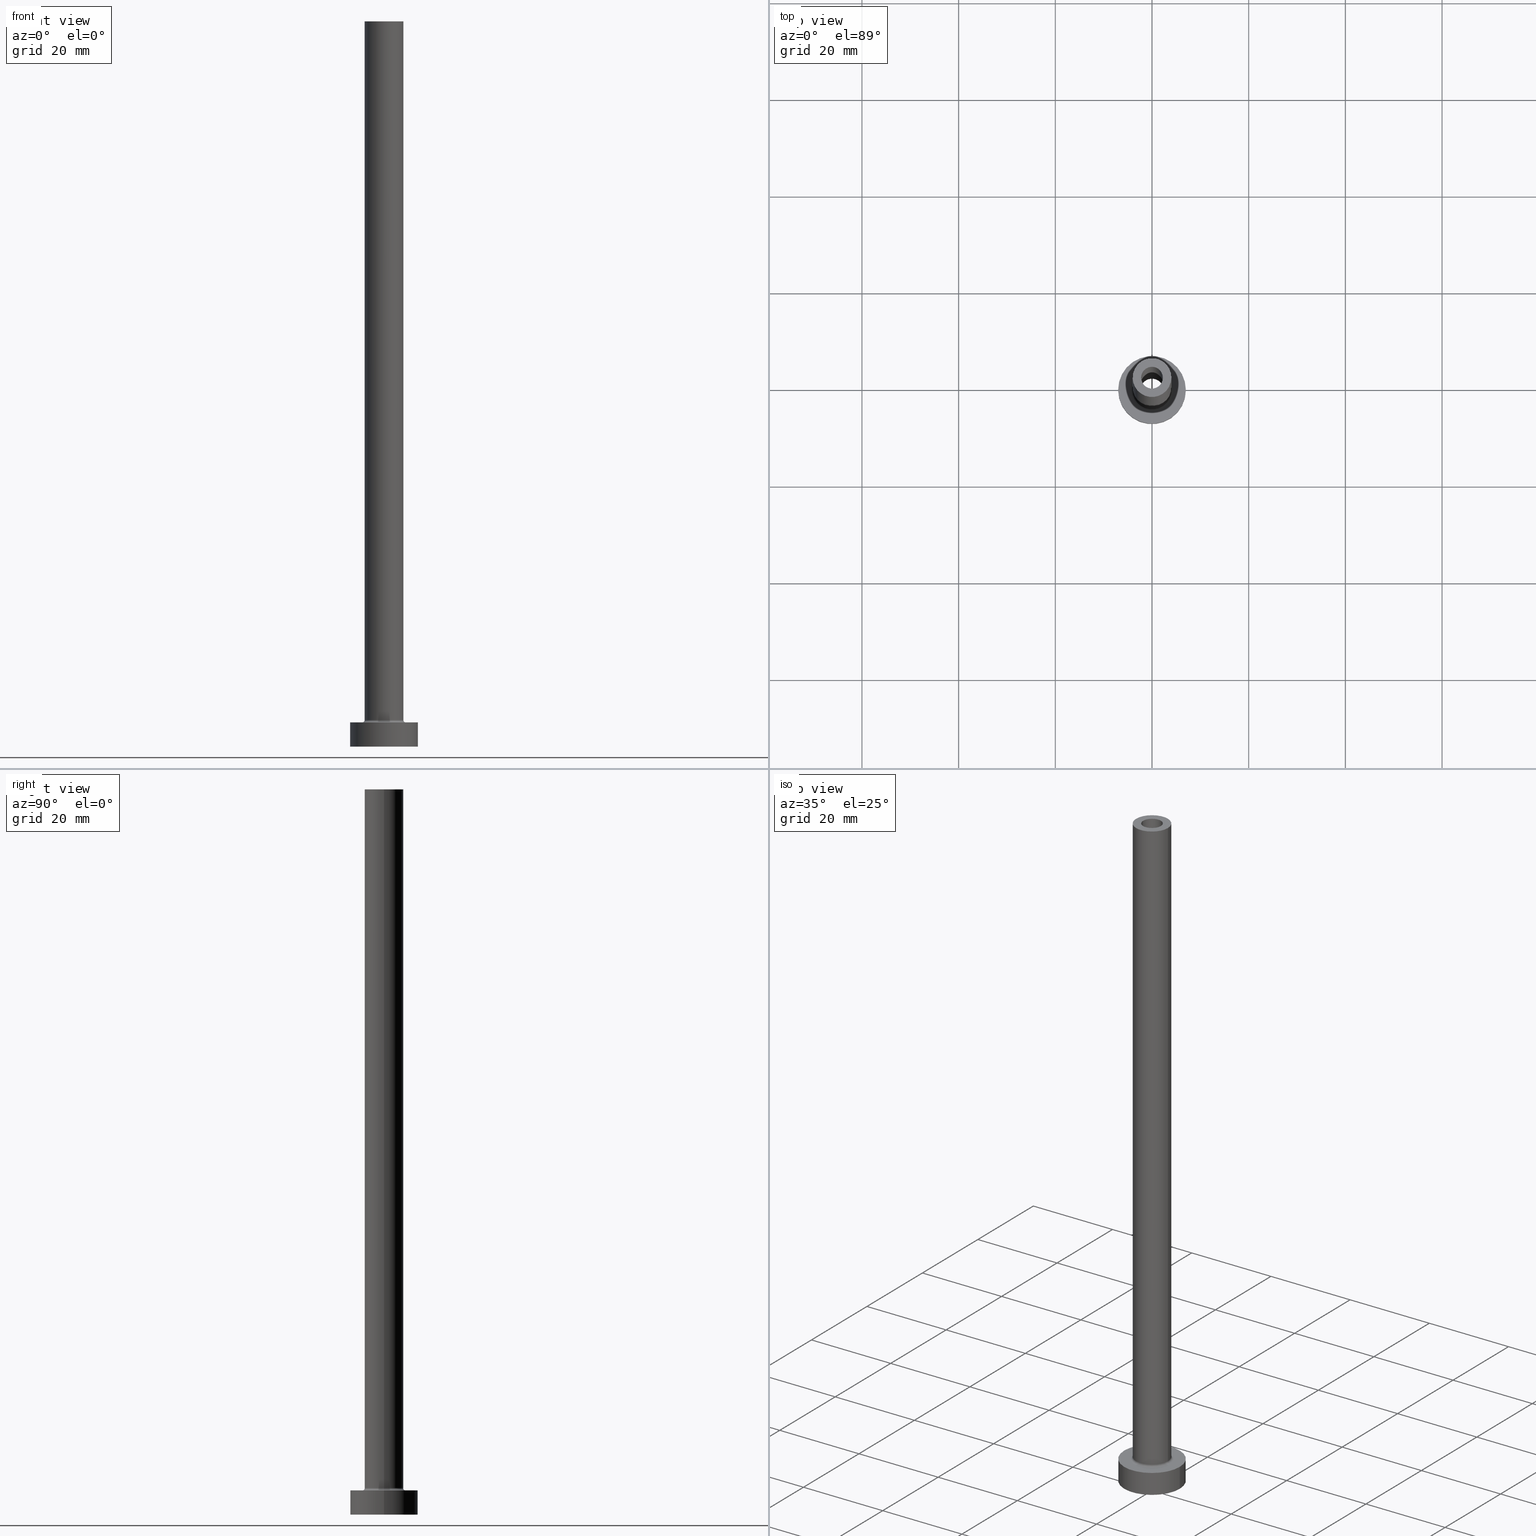
[diagram: canonical four-view strip — front | top / right | iso, engineering-drawing reading convention]
A machine part, canonical four-view strip (front | top / right | iso — engineering-drawing reading convention). The complete STEP part file that produces these views, byte-faithful:
ISO-10303-21;
HEADER;
FILE_DESCRIPTION (( 'STEP AP203' ),
    '1' );
FILE_NAME ('fded.STEP',
    '2023-02-13T11:05:26',
    ( '' ),
    ( '' ),
    'SwSTEP 2.0',
    'SolidWorks 2019',
    '' );
FILE_SCHEMA (( 'CONFIG_CONTROL_DESIGN' ));
ENDSEC;

DATA;
#1 = ORIENTED_EDGE ( 'NONE', *, *, #280, .F. ) ;
#2 = CARTESIAN_POINT ( 'NONE',  ( 0.000000000000000000, 0.000000000000000000, 5.500000000000005329 ) ) ;
#3 = CIRCLE ( 'NONE', #285, 4.500000000000000888 ) ;
#4 = PERSON_AND_ORGANIZATION ( #320, #323 ) ;
#5 = LOCAL_TIME ( 12, 5, 26.00000000000000000, #43 ) ;
#6 = CYLINDRICAL_SURFACE ( 'NONE', #351, 4.000000000000000000 ) ;
#7 = APPROVAL_STATUS ( 'not_yet_approved' ) ;
#8 = CYLINDRICAL_SURFACE ( 'NONE', #153, 2.399999999999999911 ) ;
#9 = ORIENTED_EDGE ( 'NONE', *, *, #194, .T. ) ;
#10 = ORIENTED_EDGE ( 'NONE', *, *, #186, .T. ) ;
#11 = CALENDAR_DATE ( 2023, 13, 2 ) ;
#12 = DIRECTION ( 'NONE',  ( 1.000000000000000000, 0.000000000000000000, 0.000000000000000000 ) ) ;
#13 = ORIENTED_EDGE ( 'NONE', *, *, #119, .F. ) ;
#14 = CC_DESIGN_DATE_AND_TIME_ASSIGNMENT ( #288, #321, ( #76 ) ) ;
#15 = DIRECTION ( 'NONE',  ( 1.000000000000000000, 0.000000000000000000, 0.000000000000000000 ) ) ;
#16 = EDGE_LOOP ( 'NONE', ( #123, #187, #389, #257 ) ) ;
#17 = ORIENTED_EDGE ( 'NONE', *, *, #107, .T. ) ;
#18 = EDGE_LOOP ( 'NONE', ( #176, #264, #405, #184 ) ) ;
#19 = AXIS2_PLACEMENT_3D ( 'NONE', #446, #372, #199 ) ;
#20 = DIRECTION ( 'NONE',  ( 0.000000000000000000, 0.000000000000000000, -1.000000000000000000 ) ) ;
#21 = ADVANCED_FACE ( 'NONE', ( #270 ), #262, .F. ) ;
#22 = CARTESIAN_POINT ( 'NONE',  ( -2.399999999999999911, 0.000000000000000000, 111.7882250993908571 ) ) ;
#23 = LINE ( 'NONE', #22, #117 ) ;
#24 = CARTESIAN_POINT ( 'NONE',  ( 0.000000000000000000, 0.000000000000000000, 0.000000000000000000 ) ) ;
#25 = CIRCLE ( 'NONE', #182, 4.500000000000000888 ) ;
#26 = EDGE_CURVE ( 'NONE', #315, #65, #399, .T. ) ;
#27 = FACE_OUTER_BOUND ( 'NONE', #155, .T. ) ;
#28 = AXIS2_PLACEMENT_3D ( 'NONE', #267, #412, #391 ) ;
#29 = APPROVAL_ROLE ( '' ) ;
#30 = DIRECTION ( 'NONE',  ( -0.000000000000000000, -0.000000000000000000, -1.000000000000000000 ) ) ;
#31 = CIRCLE ( 'NONE', #60, 2.250000000000000000 ) ;
#32 = DIRECTION ( 'NONE',  ( 1.000000000000000000, 0.000000000000000000, 0.000000000000000000 ) ) ;
#33 = CARTESIAN_POINT ( 'NONE',  ( 0.000000000000000000, 0.000000000000000000, 150.0000000000000000 ) ) ;
#34 = ORIENTED_EDGE ( 'NONE', *, *, #236, .T. ) ;
#35 = ADVANCED_FACE ( 'NONE', ( #344 ), #415, .T. ) ;
#36 = CARTESIAN_POINT ( 'NONE',  ( 0.000000000000000000, 0.000000000000000000, 5.000000000000000000 ) ) ;
#37 = CIRCLE ( 'NONE', #293, 0.5000000000000004441 ) ;
#38 = PERSON_AND_ORGANIZATION ( #320, #323 ) ;
#39 = EDGE_CURVE ( 'NONE', #218, #50, #449, .T. ) ;
#40 = DIRECTION ( 'NONE',  ( 0.000000000000000000, 0.000000000000000000, 1.000000000000000000 ) ) ;
#41 = VERTEX_POINT ( 'NONE', #301 ) ;
#42 = AXIS2_PLACEMENT_3D ( 'NONE', #56, #273, #307 ) ;
#43 = COORDINATED_UNIVERSAL_TIME_OFFSET ( 1, 0, .AHEAD. ) ;
#44 = VERTEX_POINT ( 'NONE', #339 ) ;
#45 = APPROVAL_STATUS ( 'not_yet_approved' ) ;
#46 = EDGE_LOOP ( 'NONE', ( #385, #216, #228, #82 ) ) ;
#47 = CC_DESIGN_DATE_AND_TIME_ASSIGNMENT ( #437, #251, ( #260 ) ) ;
#48 = APPROVAL_DATE_TIME ( #395, #429 ) ;
#49 = AXIS2_PLACEMENT_3D ( 'NONE', #128, #229, #370 ) ;
#50 = VERTEX_POINT ( 'NONE', #447 ) ;
#51 = ADVANCED_BREP_SHAPE_REPRESENTATION ( 'fded', ( #189, #68 ), #313 ) ;
#52 = AXIS2_PLACEMENT_3D ( 'NONE', #201, #160, #100 ) ;
#53 = DIRECTION ( 'NONE',  ( -0.000000000000000000, -0.000000000000000000, -1.000000000000000000 ) ) ;
#54 = ORIENTED_EDGE ( 'NONE', *, *, #374, .F. ) ;
#55 = CARTESIAN_POINT ( 'NONE',  ( -4.500000000000000888, 5.510910596163088569E-16, 5.000000000000002665 ) ) ;
#56 = CARTESIAN_POINT ( 'NONE',  ( 0.000000000000000000, 0.000000000000000000, 105.0000000000000000 ) ) ;
#57 = CLOSED_SHELL ( 'NONE', ( #126, #322, #141, #35, #74, #424, #89, #294, #207, #59, #21, #276, #369, #159 ) ) ;
#58 = DIRECTION ( 'NONE',  ( 1.000000000000000000, 0.000000000000000000, 0.000000000000000000 ) ) ;
#59 = ADVANCED_FACE ( 'NONE', ( #454, #419 ), #310, .T. ) ;
#60 = AXIS2_PLACEMENT_3D ( 'NONE', #337, #317, #32 ) ;
#61 = VERTEX_POINT ( 'NONE', #144 ) ;
#62 = DIRECTION ( 'NONE',  ( 0.000000000000000000, 0.000000000000000000, 1.000000000000000000 ) ) ;
#63 = VERTEX_POINT ( 'NONE', #109 ) ;
#64 = CYLINDRICAL_SURFACE ( 'NONE', #231, 2.399999999999999911 ) ;
#65 = VERTEX_POINT ( 'NONE', #79 ) ;
#66 = CARTESIAN_POINT ( 'NONE',  ( -2.250000000000000000, 0.000000000000000000, 150.0000000000000000 ) ) ;
#67 = DIRECTION ( 'NONE',  ( 1.000000000000000000, 0.000000000000000000, 0.000000000000000000 ) ) ;
#68 = AXIS2_PLACEMENT_3D ( 'NONE', #102, #235, #377 ) ;
#69 = APPLICATION_PROTOCOL_DEFINITION ( 'international standard', 'config_control_design', 1994, #210 ) ;
#70 = FACE_OUTER_BOUND ( 'NONE', #46, .T. ) ;
#71 = AXIS2_PLACEMENT_3D ( 'NONE', #106, #73, #349 ) ;
#72 = DATE_AND_TIME ( #105, #124 ) ;
#73 = DIRECTION ( 'NONE',  ( 0.000000000000000000, 0.000000000000000000, 1.000000000000000000 ) ) ;
#74 = ADVANCED_FACE ( 'NONE', ( #27 ), #347, .T. ) ;
#75 = ORIENTED_EDGE ( 'NONE', *, *, #452, .F. ) ;
#76 = SECURITY_CLASSIFICATION ( '', '', #442 ) ;
#77 = DIRECTION ( 'NONE',  ( 1.000000000000000000, 0.000000000000000000, 0.000000000000000000 ) ) ;
#78 = COORDINATED_UNIVERSAL_TIME_OFFSET ( 1, 0, .AHEAD. ) ;
#79 = CARTESIAN_POINT ( 'NONE',  ( -2.399999999999999911, 0.000000000000000000, 0.000000000000000000 ) ) ;
#80 = CC_DESIGN_PERSON_AND_ORGANIZATION_ASSIGNMENT ( #4, #247, ( #396 ) ) ;
#81 = COORDINATED_UNIVERSAL_TIME_OFFSET ( 1, 0, .AHEAD. ) ;
#82 = ORIENTED_EDGE ( 'NONE', *, *, #286, .F. ) ;
#83 = AXIS2_PLACEMENT_3D ( 'NONE', #422, #215, #461 ) ;
#84 = DATE_AND_TIME ( #150, #5 ) ;
#85 = CC_DESIGN_APPROVAL ( #309, ( #76 ) ) ;
#86 = CARTESIAN_POINT ( 'NONE',  ( 0.000000000000000000, 0.000000000000000000, 150.0000000000000000 ) ) ;
#87 = EDGE_LOOP ( 'NONE', ( #225, #224 ) ) ;
#88 = DIRECTION ( 'NONE',  ( 0.000000000000000000, 0.000000000000000000, 1.000000000000000000 ) ) ;
#89 = ADVANCED_FACE ( 'NONE', ( #423, #284 ), #174, .T. ) ;
#90 = ORIENTED_EDGE ( 'NONE', *, *, #107, .F. ) ;
#91 = VERTEX_POINT ( 'NONE', #103 ) ;
#92 = VECTOR ( 'NONE', #393, 1000.000000000000000 ) ;
#93 = DIRECTION ( 'NONE',  ( 1.000000000000000000, 0.000000000000000000, 0.000000000000000000 ) ) ;
#94 = ORIENTED_EDGE ( 'NONE', *, *, #221, .F. ) ;
#95 = AXIS2_PLACEMENT_3D ( 'NONE', #24, #166, #67 ) ;
#96 = CC_DESIGN_PERSON_AND_ORGANIZATION_ASSIGNMENT ( #277, #379, ( #237 ) ) ;
#97 = CARTESIAN_POINT ( 'NONE',  ( 2.399999999999999911, 2.939152317953647106E-16, 0.000000000000000000 ) ) ;
#98 = VECTOR ( 'NONE', #53, 1000.000000000000000 ) ;
#99 = UNCERTAINTY_MEASURE_WITH_UNIT (LENGTH_MEASURE( 1.000000000000000082E-05 ), #383, 'distance_accuracy_value', 'NONE');
#100 = DIRECTION ( 'NONE',  ( -1.000000000000000000, 0.000000000000000000, 0.000000000000000000 ) ) ;
#101 = CC_DESIGN_PERSON_AND_ORGANIZATION_ASSIGNMENT ( #258, #390, ( #76 ) ) ;
#102 = CARTESIAN_POINT ( 'NONE',  ( 0.000000000000000000, 0.000000000000000000, 0.000000000000000000 ) ) ;
#103 = CARTESIAN_POINT ( 'NONE',  ( -4.000000000000000000, 0.000000000000000000, 5.500000000000005329 ) ) ;
#104 = VECTOR ( 'NONE', #356, 1000.000000000000000 ) ;
#105 = CALENDAR_DATE ( 2023, 13, 2 ) ;
#106 = CARTESIAN_POINT ( 'NONE',  ( 0.000000000000000000, 0.000000000000000000, 5.500000000000005329 ) ) ;
#107 = EDGE_CURVE ( 'NONE', #196, #41, #171, .T. ) ;
#108 = CARTESIAN_POINT ( 'NONE',  ( 4.000000000000000000, 4.898587196589412829E-16, 5.500000000000005329 ) ) ;
#109 = CARTESIAN_POINT ( 'NONE',  ( 4.500000000000000888, 0.000000000000000000, 5.000000000000002665 ) ) ;
#110 = CARTESIAN_POINT ( 'NONE',  ( 0.000000000000000000, 0.000000000000000000, 5.000000000000000000 ) ) ;
#111 = CYLINDRICAL_SURFACE ( 'NONE', #411, 2.250000000000000000 ) ;
#112 = ORIENTED_EDGE ( 'NONE', *, *, #363, .F. ) ;
#113 = EDGE_CURVE ( 'NONE', #196, #328, #167, .T. ) ;
#114 = CARTESIAN_POINT ( 'NONE',  ( 2.399999999999999911, 2.939152317953647106E-16, 105.0000000000000000 ) ) ;
#115 = EDGE_LOOP ( 'NONE', ( #376, #9, #441, #94 ) ) ;
#116 = ORIENTED_EDGE ( 'NONE', *, *, #194, .F. ) ;
#117 = VECTOR ( 'NONE', #20, 1000.000000000000000 ) ;
#118 = ORIENTED_EDGE ( 'NONE', *, *, #388, .T. ) ;
#119 = EDGE_CURVE ( 'NONE', #445, #91, #401, .T. ) ;
#120 = DIRECTION ( 'NONE',  ( 1.000000000000000000, 0.000000000000000000, 0.000000000000000000 ) ) ;
#121 = ORIENTED_EDGE ( 'NONE', *, *, #460, .F. ) ;
#122 = DIRECTION ( 'NONE',  ( 1.000000000000000000, 0.000000000000000000, 0.000000000000000000 ) ) ;
#123 = ORIENTED_EDGE ( 'NONE', *, *, #381, .T. ) ;
#124 = LOCAL_TIME ( 12, 5, 26.00000000000000000, #170 ) ;
#125 = CARTESIAN_POINT ( 'NONE',  ( 0.000000000000000000, 0.000000000000000000, 5.500000000000005329 ) ) ;
#126 = ADVANCED_FACE ( 'NONE', ( #139 ), #111, .F. ) ;
#127 = CIRCLE ( 'NONE', #318, 2.250000000000000000 ) ;
#128 = CARTESIAN_POINT ( 'NONE',  ( 0.000000000000000000, 0.000000000000000000, 0.000000000000000000 ) ) ;
#129 = CARTESIAN_POINT ( 'NONE',  ( -2.399999999999999911, 0.000000000000000000, 105.0000000000000000 ) ) ;
#130 = EDGE_LOOP ( 'NONE', ( #112, #297, #421, #368 ) ) ;
#131 = CC_DESIGN_PERSON_AND_ORGANIZATION_ASSIGNMENT ( #348, #173, ( #260 ) ) ;
#132 = DIRECTION ( 'NONE',  ( 1.000000000000000000, 0.000000000000000000, 0.000000000000000000 ) ) ;
#133 = AXIS2_PLACEMENT_3D ( 'NONE', #456, #197, #132 ) ;
#134 = ORIENTED_EDGE ( 'NONE', *, *, #250, .F. ) ;
#135 = APPROVAL_PERSON_ORGANIZATION ( #38, #309, #148 ) ;
#136 = DIRECTION ( 'NONE',  ( 0.000000000000000000, 0.000000000000000000, 1.000000000000000000 ) ) ;
#137 = EDGE_LOOP ( 'NONE', ( #261, #325 ) ) ;
#138 = CARTESIAN_POINT ( 'NONE',  ( 7.000000000000000000, 8.572527594031473190E-16, 5.000000000000000000 ) ) ;
#139 = FACE_OUTER_BOUND ( 'NONE', #115, .T. ) ;
#140 = CIRCLE ( 'NONE', #133, 2.399999999999999911 ) ;
#141 = ADVANCED_FACE ( 'NONE', ( #70 ), #345, .F. ) ;
#142 = LINE ( 'NONE', #138, #308 ) ;
#143 =( NAMED_UNIT ( * ) PLANE_ANGLE_UNIT ( ) SI_UNIT ( $, .RADIAN. ) );
#144 = CARTESIAN_POINT ( 'NONE',  ( -4.000000000000000000, 0.000000000000000000, 150.0000000000000000 ) ) ;
#145 = DIRECTION ( 'NONE',  ( 1.224646799147353207E-16, 1.000000000000000000, -0.000000000000000000 ) ) ;
#146 = DIRECTION ( 'NONE',  ( 0.000000000000000000, 0.000000000000000000, 1.000000000000000000 ) ) ;
#147 = AXIS2_PLACEMENT_3D ( 'NONE', #86, #263, #122 ) ;
#148 = APPROVAL_ROLE ( '' ) ;
#149 = ORIENTED_EDGE ( 'NONE', *, *, #303, .T. ) ;
#150 = CALENDAR_DATE ( 2023, 13, 2 ) ;
#151 = ORIENTED_EDGE ( 'NONE', *, *, #172, .F. ) ;
#152 = EDGE_CURVE ( 'NONE', #408, #365, #127, .T. ) ;
#153 = AXIS2_PLACEMENT_3D ( 'NONE', #289, #233, #163 ) ;
#154 = CALENDAR_DATE ( 2023, 13, 2 ) ;
#155 = EDGE_LOOP ( 'NONE', ( #121, #118, #249, #90 ) ) ;
#156 = FACE_OUTER_BOUND ( 'NONE', #130, .T. ) ;
#157 = EDGE_LOOP ( 'NONE', ( #10, #223 ) ) ;
#158 = FACE_BOUND ( 'NONE', #287, .T. ) ;
#159 = ADVANCED_FACE ( 'NONE', ( #256 ), #397, .F. ) ;
#160 = DIRECTION ( 'NONE',  ( -0.000000000000000000, -0.000000000000000000, -1.000000000000000000 ) ) ;
#161 = AXIS2_PLACEMENT_3D ( 'NONE', #443, #40, #120 ) ;
#162 = DIRECTION ( 'NONE',  ( 0.000000000000000000, -1.000000000000000000, 0.000000000000000000 ) ) ;
#163 = DIRECTION ( 'NONE',  ( -1.000000000000000000, 0.000000000000000000, 0.000000000000000000 ) ) ;
#164 = CARTESIAN_POINT ( 'NONE',  ( 0.000000000000000000, 0.000000000000000000, 0.000000000000000000 ) ) ;
#165 = CIRCLE ( 'NONE', #147, 4.000000000000000000 ) ;
#166 = DIRECTION ( 'NONE',  ( -0.000000000000000000, -0.000000000000000000, -1.000000000000000000 ) ) ;
#167 = CIRCLE ( 'NONE', #304, 7.000000000000000000 ) ;
#168 = CYLINDRICAL_SURFACE ( 'NONE', #265, 7.000000000000000000 ) ;
#169 = DIRECTION ( 'NONE',  ( -1.000000000000000000, 0.000000000000000000, 0.000000000000000000 ) ) ;
#170 = COORDINATED_UNIVERSAL_TIME_OFFSET ( 1, 0, .AHEAD. ) ;
#171 = LINE ( 'NONE', #382, #367 ) ;
#172 = EDGE_CURVE ( 'NONE', #299, #63, #3, .T. ) ;
#173 = PERSON_AND_ORGANIZATION_ROLE ( 'creator' ) ;
#174 = PLANE ( 'NONE',  #241 ) ;
#175 = APPROVAL_PERSON_ORGANIZATION ( #208, #214, #29 ) ;
#176 = ORIENTED_EDGE ( 'NONE', *, *, #350, .F. ) ;
#177 = EDGE_LOOP ( 'NONE', ( #431, #358, #290, #149 ) ) ;
#178 = CC_DESIGN_PERSON_AND_ORGANIZATION_ASSIGNMENT ( #180, #326, ( #396 ) ) ;
#179 = DIRECTION ( 'NONE',  ( 1.000000000000000000, 0.000000000000000000, 0.000000000000000000 ) ) ;
#180 = PERSON_AND_ORGANIZATION ( #320, #323 ) ;
#181 = CARTESIAN_POINT ( 'NONE',  ( -2.250000000000000000, 0.000000000000000000, 150.0000000000000000 ) ) ;
#182 = AXIS2_PLACEMENT_3D ( 'NONE', #183, #296, #248 ) ;
#183 = CARTESIAN_POINT ( 'NONE',  ( 0.000000000000000000, 0.000000000000000000, 5.000000000000000000 ) ) ;
#184 = ORIENTED_EDGE ( 'NONE', *, *, #202, .F. ) ;
#185 = DIRECTION ( 'NONE',  ( -1.000000000000000000, 0.000000000000000000, 0.000000000000000000 ) ) ;
#186 = EDGE_CURVE ( 'NONE', #61, #44, #165, .T. ) ;
#187 = ORIENTED_EDGE ( 'NONE', *, *, #336, .T. ) ;
#188 = DIRECTION ( 'NONE',  ( -1.000000000000000000, 0.000000000000000000, 0.000000000000000000 ) ) ;
#189 = MANIFOLD_SOLID_BREP ( 'Odebrat vysunut�m4', #57 ) ;
#190 = EDGE_LOOP ( 'NONE', ( #436, #392 ) ) ;
#191 = LOCAL_TIME ( 12, 5, 26.00000000000000000, #364 ) ;
#192 = LINE ( 'NONE', #362, #104 ) ;
#193 = VERTEX_POINT ( 'NONE', #114 ) ;
#194 = EDGE_CURVE ( 'NONE', #365, #50, #192, .T. ) ;
#195 = FACE_OUTER_BOUND ( 'NONE', #451, .T. ) ;
#196 = VERTEX_POINT ( 'NONE', #217 ) ;
#197 = DIRECTION ( 'NONE',  ( -0.000000000000000000, -0.000000000000000000, -1.000000000000000000 ) ) ;
#198 = APPROVAL_PERSON_ORGANIZATION ( #295, #429, #361 ) ;
#199 = DIRECTION ( 'NONE',  ( 1.000000000000000000, 0.000000000000000000, -0.000000000000000000 ) ) ;
#200 = CARTESIAN_POINT ( 'NONE',  ( 0.000000000000000000, 0.000000000000000000, 5.500000000000005329 ) ) ;
#201 = CARTESIAN_POINT ( 'NONE',  ( 0.000000000000000000, 0.000000000000000000, 150.0000000000000000 ) ) ;
#202 = EDGE_CURVE ( 'NONE', #61, #91, #259, .T. ) ;
#203 = CARTESIAN_POINT ( 'NONE',  ( 0.000000000000000000, 0.000000000000000000, 111.7882250993908571 ) ) ;
#204 = ORIENTED_EDGE ( 'NONE', *, *, #280, .T. ) ;
#205 = MECHANICAL_CONTEXT ( 'NONE', #438, 'mechanical' ) ;
#206 = CIRCLE ( 'NONE', #278, 2.399999999999999911 ) ;
#207 = ADVANCED_FACE ( 'NONE', ( #156 ), #6, .T. ) ;
#208 = PERSON_AND_ORGANIZATION ( #320, #323 ) ;
#209 = APPROVAL_DATE_TIME ( #72, #214 ) ;
#210 = APPLICATION_CONTEXT ( 'configuration controlled 3d designs of mechanical parts and assemblies' ) ;
#211 =( NAMED_UNIT ( * ) SI_UNIT ( $, .STERADIAN. ) SOLID_ANGLE_UNIT ( ) );
#212 = PRODUCT_DEFINITION_SHAPE ( 'NONE', 'NONE',  #260 ) ;
#213 = CIRCLE ( 'NONE', #245, 2.399999999999999911 ) ;
#214 = APPROVAL ( #346, 'NEUR�EN�' ) ;
#215 = DIRECTION ( 'NONE',  ( 0.000000000000000000, 0.000000000000000000, 1.000000000000000000 ) ) ;
#216 = ORIENTED_EDGE ( 'NONE', *, *, #400, .T. ) ;
#217 = CARTESIAN_POINT ( 'NONE',  ( -7.000000000000000000, 0.000000000000000000, 5.000000000000000000 ) ) ;
#218 = VERTEX_POINT ( 'NONE', #402 ) ;
#219 = AXIS2_PLACEMENT_3D ( 'NONE', #200, #375, #58 ) ;
#220 = APPROVAL_DATE_TIME ( #84, #309 ) ;
#221 = EDGE_CURVE ( 'NONE', #408, #218, #329, .T. ) ;
#222 = CARTESIAN_POINT ( 'NONE',  ( 0.000000000000000000, 0.000000000000000000, 150.0000000000000000 ) ) ;
#223 = ORIENTED_EDGE ( 'NONE', *, *, #350, .T. ) ;
#224 = ORIENTED_EDGE ( 'NONE', *, *, #460, .T. ) ;
#225 = ORIENTED_EDGE ( 'NONE', *, *, #113, .T. ) ;
#226 = AXIS2_PLACEMENT_3D ( 'NONE', #291, #88, #12 ) ;
#227 = CARTESIAN_POINT ( 'NONE',  ( 4.000000000000000000, 4.898587196589412829E-16, 150.0000000000000000 ) ) ;
#228 = ORIENTED_EDGE ( 'NONE', *, *, #236, .F. ) ;
#229 = DIRECTION ( 'NONE',  ( 0.000000000000000000, 0.000000000000000000, 1.000000000000000000 ) ) ;
#230 = LINE ( 'NONE', #269, #386 ) ;
#231 = AXIS2_PLACEMENT_3D ( 'NONE', #203, #306, #341 ) ;
#232 = EDGE_CURVE ( 'NONE', #365, #408, #331, .T. ) ;
#233 = DIRECTION ( 'NONE',  ( 0.000000000000000000, 0.000000000000000000, -1.000000000000000000 ) ) ;
#234 = ORIENTED_EDGE ( 'NONE', *, *, #113, .F. ) ;
#235 = DIRECTION ( 'NONE',  ( 0.000000000000000000, 0.000000000000000000, 1.000000000000000000 ) ) ;
#236 = EDGE_CURVE ( 'NONE', #63, #299, #25, .T. ) ;
#237 = PRODUCT ( 'fded', 'fded', '', ( #205 ) ) ;
#238 = CARTESIAN_POINT ( 'NONE',  ( 0.000000000000000000, 0.000000000000000000, 105.0000000000000000 ) ) ;
#239 = CIRCLE ( 'NONE', #416, 0.5000000000000004441 ) ;
#240 = DIRECTION ( 'NONE',  ( 1.000000000000000000, 0.000000000000000000, 0.000000000000000000 ) ) ;
#241 = AXIS2_PLACEMENT_3D ( 'NONE', #353, #457, #243 ) ;
#242 = DIRECTION ( 'NONE',  ( -0.000000000000000000, -0.000000000000000000, -1.000000000000000000 ) ) ;
#243 = DIRECTION ( 'NONE',  ( 1.000000000000000000, 0.000000000000000000, -0.000000000000000000 ) ) ;
#244 = DIRECTION ( 'NONE',  ( -0.000000000000000000, -0.000000000000000000, -1.000000000000000000 ) ) ;
#245 = AXIS2_PLACEMENT_3D ( 'NONE', #427, #312, #77 ) ;
#246 = EDGE_LOOP ( 'NONE', ( #116, #330, #332, #54 ) ) ;
#247 = PERSON_AND_ORGANIZATION_ROLE ( 'creator' ) ;
#248 = DIRECTION ( 'NONE',  ( 1.000000000000000000, 0.000000000000000000, 0.000000000000000000 ) ) ;
#249 = ORIENTED_EDGE ( 'NONE', *, *, #250, .T. ) ;
#250 = EDGE_CURVE ( 'NONE', #403, #41, #458, .T. ) ;
#251 = DATE_TIME_ROLE ( 'creation_date' ) ;
#252 = EDGE_LOOP ( 'NONE', ( #1, #134 ) ) ;
#253 = CIRCLE ( 'NONE', #219, 4.000000000000000000 ) ;
#254 = CC_DESIGN_SECURITY_CLASSIFICATION ( #76, ( #396 ) ) ;
#255 = CALENDAR_DATE ( 2023, 13, 2 ) ;
#256 = FACE_OUTER_BOUND ( 'NONE', #246, .T. ) ;
#257 = ORIENTED_EDGE ( 'NONE', *, *, #340, .F. ) ;
#258 = PERSON_AND_ORGANIZATION ( #320, #323 ) ;
#259 = LINE ( 'NONE', #440, #92 ) ;
#260 = PRODUCT_DEFINITION ( 'NEZN�M�', '', #396, #406 ) ;
#261 = ORIENTED_EDGE ( 'NONE', *, *, #303, .F. ) ;
#262 = TOROIDAL_SURFACE ( 'NONE', #360, 4.500000000000000888, 0.5000000000000000000 ) ;
#263 = DIRECTION ( 'NONE',  ( 0.000000000000000000, 0.000000000000000000, 1.000000000000000000 ) ) ;
#264 = ORIENTED_EDGE ( 'NONE', *, *, #363, .T. ) ;
#265 = AXIS2_PLACEMENT_3D ( 'NONE', #110, #244, #387 ) ;
#266 = PLANE ( 'NONE',  #49 ) ;
#267 = CARTESIAN_POINT ( 'NONE',  ( 0.000000000000000000, 0.000000000000000000, 150.0000000000000000 ) ) ;
#268 = ORIENTED_EDGE ( 'NONE', *, *, #388, .F. ) ;
#269 = CARTESIAN_POINT ( 'NONE',  ( 2.399999999999999911, 2.939152317953647106E-16, 111.7882250993908571 ) ) ;
#270 = FACE_OUTER_BOUND ( 'NONE', #398, .T. ) ;
#271 = LOCAL_TIME ( 12, 5, 26.00000000000000000, #81 ) ;
#272 = CARTESIAN_POINT ( 'NONE',  ( 0.000000000000000000, 0.000000000000000000, 150.0000000000000000 ) ) ;
#273 = DIRECTION ( 'NONE',  ( 0.000000000000000000, 0.000000000000000000, 1.000000000000000000 ) ) ;
#274 = LINE ( 'NONE', #227, #98 ) ;
#275 = DIRECTION ( 'NONE',  ( 0.000000000000000000, 0.000000000000000000, 1.000000000000000000 ) ) ;
#276 = ADVANCED_FACE ( 'NONE', ( #404 ), #8, .F. ) ;
#277 = PERSON_AND_ORGANIZATION ( #320, #323 ) ;
#278 = AXIS2_PLACEMENT_3D ( 'NONE', #238, #428, #352 ) ;
#279 = CARTESIAN_POINT ( 'NONE',  ( 7.000000000000000000, 8.572527594031473190E-16, 0.000000000000000000 ) ) ;
#280 = EDGE_CURVE ( 'NONE', #41, #403, #455, .T. ) ;
#281 = DIRECTION ( 'NONE',  ( -1.000000000000000000, 1.224646799147351482E-16, 0.000000000000000000 ) ) ;
#282 = CARTESIAN_POINT ( 'NONE',  ( 0.000000000000000000, 0.000000000000000000, 5.000000000000000000 ) ) ;
#283 = CARTESIAN_POINT ( 'NONE',  ( -4.500000000000000888, 5.510910596163089556E-16, 5.500000000000005329 ) ) ;
#284 = FACE_OUTER_BOUND ( 'NONE', #87, .T. ) ;
#285 = AXIS2_PLACEMENT_3D ( 'NONE', #36, #407, #93 ) ;
#286 = EDGE_CURVE ( 'NONE', #445, #63, #37, .T. ) ;
#287 = EDGE_LOOP ( 'NONE', ( #439, #394 ) ) ;
#288 = DATE_AND_TIME ( #255, #417 ) ;
#289 = CARTESIAN_POINT ( 'NONE',  ( 0.000000000000000000, 0.000000000000000000, 111.7882250993908571 ) ) ;
#290 = ORIENTED_EDGE ( 'NONE', *, *, #340, .T. ) ;
#291 = CARTESIAN_POINT ( 'NONE',  ( 0.000000000000000000, 0.000000000000000000, 150.0000000000000000 ) ) ;
#292 = VERTEX_POINT ( 'NONE', #129 ) ;
#293 = AXIS2_PLACEMENT_3D ( 'NONE', #414, #162, #453 ) ;
#294 = ADVANCED_FACE ( 'NONE', ( #373, #450 ), #266, .F. ) ;
#295 = PERSON_AND_ORGANIZATION ( #320, #323 ) ;
#296 = DIRECTION ( 'NONE',  ( -0.000000000000000000, -0.000000000000000000, -1.000000000000000000 ) ) ;
#297 = ORIENTED_EDGE ( 'NONE', *, *, #186, .F. ) ;
#298 = DIRECTION ( 'NONE',  ( -0.000000000000000000, -0.000000000000000000, -1.000000000000000000 ) ) ;
#299 = VERTEX_POINT ( 'NONE', #55 ) ;
#300 = DIRECTION ( 'NONE',  ( 1.000000000000000000, 0.000000000000000000, 0.000000000000000000 ) ) ;
#301 = CARTESIAN_POINT ( 'NONE',  ( -7.000000000000000000, 0.000000000000000000, 0.000000000000000000 ) ) ;
#302 = CIRCLE ( 'NONE', #83, 7.000000000000000000 ) ;
#303 = EDGE_CURVE ( 'NONE', #65, #315, #140, .T. ) ;
#304 = AXIS2_PLACEMENT_3D ( 'NONE', #314, #146, #179 ) ;
#305 = ORIENTED_EDGE ( 'NONE', *, *, #172, .T. ) ;
#306 = DIRECTION ( 'NONE',  ( 0.000000000000000000, 0.000000000000000000, -1.000000000000000000 ) ) ;
#307 = DIRECTION ( 'NONE',  ( 1.000000000000000000, 0.000000000000000000, 0.000000000000000000 ) ) ;
#308 = VECTOR ( 'NONE', #242, 1000.000000000000000 ) ;
#309 = APPROVAL ( #7, 'NEUR�EN�' ) ;
#310 = PLANE ( 'NONE',  #28 ) ;
#311 = FACE_OUTER_BOUND ( 'NONE', #355, .T. ) ;
#312 = DIRECTION ( 'NONE',  ( 0.000000000000000000, 0.000000000000000000, 1.000000000000000000 ) ) ;
#313 =( GEOMETRIC_REPRESENTATION_CONTEXT ( 3 ) GLOBAL_UNCERTAINTY_ASSIGNED_CONTEXT ( ( #99 ) ) GLOBAL_UNIT_ASSIGNED_CONTEXT ( ( #383, #143, #211 ) ) REPRESENTATION_CONTEXT ( 'NONE', 'WORKASPACE' ) );
#314 = CARTESIAN_POINT ( 'NONE',  ( 0.000000000000000000, 0.000000000000000000, 5.000000000000000000 ) ) ;
#315 = VERTEX_POINT ( 'NONE', #97 ) ;
#316 = EDGE_CURVE ( 'NONE', #91, #445, #253, .T. ) ;
#317 = DIRECTION ( 'NONE',  ( 0.000000000000000000, 0.000000000000000000, 1.000000000000000000 ) ) ;
#318 = AXIS2_PLACEMENT_3D ( 'NONE', #33, #426, #15 ) ;
#319 = ORIENTED_EDGE ( 'NONE', *, *, #286, .T. ) ;
#320 = PERSON ( 'NEUR�EN�', 'NEUR�EN�', 'NEUR�EN�', ('NEUR�EN�'), ('NEUR�EN�'), ('NEUR�EN�') ) ;
#321 = DATE_TIME_ROLE ( 'classification_date' ) ;
#322 = ADVANCED_FACE ( 'NONE', ( #418 ), #64, .F. ) ;
#323 = ORGANIZATION ( 'NEUR�EN�', 'NEUR�EN�', '' ) ;
#324 = DIRECTION ( 'NONE',  ( 0.000000000000000000, 0.000000000000000000, -1.000000000000000000 ) ) ;
#325 = ORIENTED_EDGE ( 'NONE', *, *, #26, .F. ) ;
#326 = PERSON_AND_ORGANIZATION_ROLE ( 'design_supplier' ) ;
#327 = CARTESIAN_POINT ( 'NONE',  ( 0.000000000000000000, 0.000000000000000000, 150.0000000000000000 ) ) ;
#328 = VERTEX_POINT ( 'NONE', #413 ) ;
#329 = LINE ( 'NONE', #181, #432 ) ;
#330 = ORIENTED_EDGE ( 'NONE', *, *, #232, .T. ) ;
#331 = CIRCLE ( 'NONE', #226, 2.250000000000000000 ) ;
#332 = ORIENTED_EDGE ( 'NONE', *, *, #221, .T. ) ;
#333 = PLANE ( 'NONE',  #19 ) ;
#334 = ORIENTED_EDGE ( 'NONE', *, *, #400, .F. ) ;
#335 = CARTESIAN_POINT ( 'NONE',  ( 2.250000000000000000, 2.755455298081543792E-16, 150.0000000000000000 ) ) ;
#336 = EDGE_CURVE ( 'NONE', #193, #315, #230, .T. ) ;
#337 = CARTESIAN_POINT ( 'NONE',  ( 0.000000000000000000, 0.000000000000000000, 105.0000000000000000 ) ) ;
#338 = DIRECTION ( 'NONE',  ( 0.000000000000000000, 0.000000000000000000, -1.000000000000000000 ) ) ;
#339 = CARTESIAN_POINT ( 'NONE',  ( 4.000000000000000000, 4.898587196589412829E-16, 150.0000000000000000 ) ) ;
#340 = EDGE_CURVE ( 'NONE', #292, #65, #23, .T. ) ;
#341 = DIRECTION ( 'NONE',  ( -1.000000000000000000, 0.000000000000000000, 0.000000000000000000 ) ) ;
#342 = ORIENTED_EDGE ( 'NONE', *, *, #381, .F. ) ;
#343 = AXIS2_PLACEMENT_3D ( 'NONE', #164, #62, #420 ) ;
#344 = FACE_OUTER_BOUND ( 'NONE', #18, .T. ) ;
#345 = TOROIDAL_SURFACE ( 'NONE', #71, 4.500000000000000888, 0.5000000000000000000 ) ;
#346 = APPROVAL_STATUS ( 'not_yet_approved' ) ;
#347 = CYLINDRICAL_SURFACE ( 'NONE', #354, 7.000000000000000000 ) ;
#348 = PERSON_AND_ORGANIZATION ( #320, #323 ) ;
#349 = DIRECTION ( 'NONE',  ( 1.000000000000000000, 0.000000000000000000, 0.000000000000000000 ) ) ;
#350 = EDGE_CURVE ( 'NONE', #44, #61, #357, .T. ) ;
#351 = AXIS2_PLACEMENT_3D ( 'NONE', #222, #298, #188 ) ;
#352 = DIRECTION ( 'NONE',  ( 1.000000000000000000, 0.000000000000000000, 0.000000000000000000 ) ) ;
#353 = CARTESIAN_POINT ( 'NONE',  ( 0.000000000000000000, 0.000000000000000000, 5.000000000000000000 ) ) ;
#354 = AXIS2_PLACEMENT_3D ( 'NONE', #282, #430, #169 ) ;
#355 = EDGE_LOOP ( 'NONE', ( #268, #234, #17, #204 ) ) ;
#356 = DIRECTION ( 'NONE',  ( 0.000000000000000000, 0.000000000000000000, -1.000000000000000000 ) ) ;
#357 = CIRCLE ( 'NONE', #378, 4.000000000000000000 ) ;
#358 = ORIENTED_EDGE ( 'NONE', *, *, #452, .T. ) ;
#359 = SHAPE_DEFINITION_REPRESENTATION ( #212, #51 ) ;
#360 = AXIS2_PLACEMENT_3D ( 'NONE', #125, #275, #371 ) ;
#361 = APPROVAL_ROLE ( '' ) ;
#362 = CARTESIAN_POINT ( 'NONE',  ( 2.250000000000000000, 2.755455298081543792E-16, 150.0000000000000000 ) ) ;
#363 = EDGE_CURVE ( 'NONE', #44, #445, #274, .T. ) ;
#364 = COORDINATED_UNIVERSAL_TIME_OFFSET ( 1, 0, .AHEAD. ) ;
#365 = VERTEX_POINT ( 'NONE', #335 ) ;
#366 = CC_DESIGN_APPROVAL ( #214, ( #260 ) ) ;
#367 = VECTOR ( 'NONE', #30, 1000.000000000000000 ) ;
#368 = ORIENTED_EDGE ( 'NONE', *, *, #316, .T. ) ;
#369 = ADVANCED_FACE ( 'NONE', ( #158, #195 ), #333, .F. ) ;
#370 = DIRECTION ( 'NONE',  ( 1.000000000000000000, 0.000000000000000000, -0.000000000000000000 ) ) ;
#371 = DIRECTION ( 'NONE',  ( 1.000000000000000000, 0.000000000000000000, 0.000000000000000000 ) ) ;
#372 = DIRECTION ( 'NONE',  ( 0.000000000000000000, 0.000000000000000000, 1.000000000000000000 ) ) ;
#373 = FACE_BOUND ( 'NONE', #137, .T. ) ;
#374 = EDGE_CURVE ( 'NONE', #50, #218, #31, .T. ) ;
#375 = DIRECTION ( 'NONE',  ( 0.000000000000000000, 0.000000000000000000, 1.000000000000000000 ) ) ;
#376 = ORIENTED_EDGE ( 'NONE', *, *, #152, .T. ) ;
#377 = DIRECTION ( 'NONE',  ( 1.000000000000000000, 0.000000000000000000, 0.000000000000000000 ) ) ;
#378 = AXIS2_PLACEMENT_3D ( 'NONE', #272, #136, #300 ) ;
#379 = PERSON_AND_ORGANIZATION_ROLE ( 'design_owner' ) ;
#380 = CARTESIAN_POINT ( 'NONE',  ( 0.000000000000000000, 0.000000000000000000, 150.0000000000000000 ) ) ;
#381 = EDGE_CURVE ( 'NONE', #292, #193, #206, .T. ) ;
#382 = CARTESIAN_POINT ( 'NONE',  ( -7.000000000000000000, 0.000000000000000000, 5.000000000000000000 ) ) ;
#383 =( LENGTH_UNIT ( ) NAMED_UNIT ( * ) SI_UNIT ( .MILLI., .METRE. ) );
#384 = DIRECTION ( 'NONE',  ( -1.000000000000000000, 0.000000000000000000, 0.000000000000000000 ) ) ;
#385 = ORIENTED_EDGE ( 'NONE', *, *, #316, .F. ) ;
#386 = VECTOR ( 'NONE', #338, 1000.000000000000000 ) ;
#387 = DIRECTION ( 'NONE',  ( -1.000000000000000000, 0.000000000000000000, 0.000000000000000000 ) ) ;
#388 = EDGE_CURVE ( 'NONE', #328, #403, #142, .T. ) ;
#389 = ORIENTED_EDGE ( 'NONE', *, *, #26, .T. ) ;
#390 = PERSON_AND_ORGANIZATION_ROLE ( 'classification_officer' ) ;
#391 = DIRECTION ( 'NONE',  ( 1.000000000000000000, 0.000000000000000000, -0.000000000000000000 ) ) ;
#392 = ORIENTED_EDGE ( 'NONE', *, *, #232, .F. ) ;
#393 = DIRECTION ( 'NONE',  ( -0.000000000000000000, -0.000000000000000000, -1.000000000000000000 ) ) ;
#394 = ORIENTED_EDGE ( 'NONE', *, *, #374, .T. ) ;
#395 = DATE_AND_TIME ( #11, #191 ) ;
#396 = PRODUCT_DEFINITION_FORMATION_WITH_SPECIFIED_SOURCE ( 'LIBOVOLN�', '', #237, .NOT_KNOWN. ) ;
#397 = CYLINDRICAL_SURFACE ( 'NONE', #409, 2.250000000000000000 ) ;
#398 = EDGE_LOOP ( 'NONE', ( #334, #13, #319, #151 ) ) ;
#399 = CIRCLE ( 'NONE', #95, 2.399999999999999911 ) ;
#400 = EDGE_CURVE ( 'NONE', #91, #299, #239, .T. ) ;
#401 = CIRCLE ( 'NONE', #434, 4.000000000000000000 ) ;
#402 = CARTESIAN_POINT ( 'NONE',  ( -2.250000000000000000, 0.000000000000000000, 105.0000000000000000 ) ) ;
#403 = VERTEX_POINT ( 'NONE', #279 ) ;
#404 = FACE_OUTER_BOUND ( 'NONE', #177, .T. ) ;
#405 = ORIENTED_EDGE ( 'NONE', *, *, #119, .T. ) ;
#406 = DESIGN_CONTEXT ( 'detailed design', #210, 'design' ) ;
#407 = DIRECTION ( 'NONE',  ( -0.000000000000000000, -0.000000000000000000, -1.000000000000000000 ) ) ;
#408 = VERTEX_POINT ( 'NONE', #66 ) ;
#409 = AXIS2_PLACEMENT_3D ( 'NONE', #327, #324, #185 ) ;
#410 = PRODUCT_RELATED_PRODUCT_CATEGORY ( 'detail', '', ( #237 ) ) ;
#411 = AXIS2_PLACEMENT_3D ( 'NONE', #380, #459, #384 ) ;
#412 = DIRECTION ( 'NONE',  ( 0.000000000000000000, 0.000000000000000000, 1.000000000000000000 ) ) ;
#413 = CARTESIAN_POINT ( 'NONE',  ( 7.000000000000000000, 8.572527594031473190E-16, 5.000000000000000000 ) ) ;
#414 = CARTESIAN_POINT ( 'NONE',  ( 4.500000000000000888, 0.000000000000000000, 5.500000000000005329 ) ) ;
#415 = CYLINDRICAL_SURFACE ( 'NONE', #52, 4.000000000000000000 ) ;
#416 = AXIS2_PLACEMENT_3D ( 'NONE', #283, #145, #281 ) ;
#417 = LOCAL_TIME ( 12, 5, 26.00000000000000000, #78 ) ;
#418 = FACE_OUTER_BOUND ( 'NONE', #16, .T. ) ;
#419 = FACE_OUTER_BOUND ( 'NONE', #157, .T. ) ;
#420 = DIRECTION ( 'NONE',  ( 1.000000000000000000, 0.000000000000000000, 0.000000000000000000 ) ) ;
#421 = ORIENTED_EDGE ( 'NONE', *, *, #202, .T. ) ;
#422 = CARTESIAN_POINT ( 'NONE',  ( 0.000000000000000000, 0.000000000000000000, 5.000000000000000000 ) ) ;
#423 = FACE_BOUND ( 'NONE', #444, .T. ) ;
#424 = ADVANCED_FACE ( 'NONE', ( #311 ), #168, .T. ) ;
#425 = APPLICATION_PROTOCOL_DEFINITION ( 'international standard', 'config_control_design', 1994, #438 ) ;
#426 = DIRECTION ( 'NONE',  ( 0.000000000000000000, 0.000000000000000000, 1.000000000000000000 ) ) ;
#427 = CARTESIAN_POINT ( 'NONE',  ( 0.000000000000000000, 0.000000000000000000, 105.0000000000000000 ) ) ;
#428 = DIRECTION ( 'NONE',  ( 0.000000000000000000, 0.000000000000000000, 1.000000000000000000 ) ) ;
#429 = APPROVAL ( #45, 'NEUR�EN�' ) ;
#430 = DIRECTION ( 'NONE',  ( -0.000000000000000000, -0.000000000000000000, -1.000000000000000000 ) ) ;
#431 = ORIENTED_EDGE ( 'NONE', *, *, #336, .F. ) ;
#432 = VECTOR ( 'NONE', #435, 1000.000000000000000 ) ;
#433 = DIRECTION ( 'NONE',  ( 0.000000000000000000, 0.000000000000000000, 1.000000000000000000 ) ) ;
#434 = AXIS2_PLACEMENT_3D ( 'NONE', #2, #433, #240 ) ;
#435 = DIRECTION ( 'NONE',  ( 0.000000000000000000, 0.000000000000000000, -1.000000000000000000 ) ) ;
#436 = ORIENTED_EDGE ( 'NONE', *, *, #152, .F. ) ;
#437 = DATE_AND_TIME ( #154, #271 ) ;
#438 = APPLICATION_CONTEXT ( 'configuration controlled 3d designs of mechanical parts and assemblies' ) ;
#439 = ORIENTED_EDGE ( 'NONE', *, *, #39, .T. ) ;
#440 = CARTESIAN_POINT ( 'NONE',  ( -4.000000000000000000, 0.000000000000000000, 150.0000000000000000 ) ) ;
#441 = ORIENTED_EDGE ( 'NONE', *, *, #39, .F. ) ;
#442 = SECURITY_CLASSIFICATION_LEVEL ( 'unclassified' ) ;
#443 = CARTESIAN_POINT ( 'NONE',  ( 0.000000000000000000, 0.000000000000000000, 0.000000000000000000 ) ) ;
#444 = EDGE_LOOP ( 'NONE', ( #34, #305 ) ) ;
#445 = VERTEX_POINT ( 'NONE', #108 ) ;
#446 = CARTESIAN_POINT ( 'NONE',  ( 0.000000000000000000, 0.000000000000000000, 105.0000000000000000 ) ) ;
#447 = CARTESIAN_POINT ( 'NONE',  ( 2.250000000000000000, 2.755455298081543792E-16, 105.0000000000000000 ) ) ;
#448 = CC_DESIGN_APPROVAL ( #429, ( #396 ) ) ;
#449 = CIRCLE ( 'NONE', #42, 2.250000000000000000 ) ;
#450 = FACE_OUTER_BOUND ( 'NONE', #252, .T. ) ;
#451 = EDGE_LOOP ( 'NONE', ( #342, #75 ) ) ;
#452 = EDGE_CURVE ( 'NONE', #193, #292, #213, .T. ) ;
#453 = DIRECTION ( 'NONE',  ( 0.000000000000000000, 0.000000000000000000, -1.000000000000000000 ) ) ;
#454 = FACE_BOUND ( 'NONE', #190, .T. ) ;
#455 = CIRCLE ( 'NONE', #343, 7.000000000000000000 ) ;
#456 = CARTESIAN_POINT ( 'NONE',  ( 0.000000000000000000, 0.000000000000000000, 0.000000000000000000 ) ) ;
#457 = DIRECTION ( 'NONE',  ( 0.000000000000000000, 0.000000000000000000, 1.000000000000000000 ) ) ;
#458 = CIRCLE ( 'NONE', #161, 7.000000000000000000 ) ;
#459 = DIRECTION ( 'NONE',  ( 0.000000000000000000, 0.000000000000000000, -1.000000000000000000 ) ) ;
#460 = EDGE_CURVE ( 'NONE', #328, #196, #302, .T. ) ;
#461 = DIRECTION ( 'NONE',  ( 1.000000000000000000, 0.000000000000000000, 0.000000000000000000 ) ) ;
ENDSEC;
END-ISO-10303-21;
